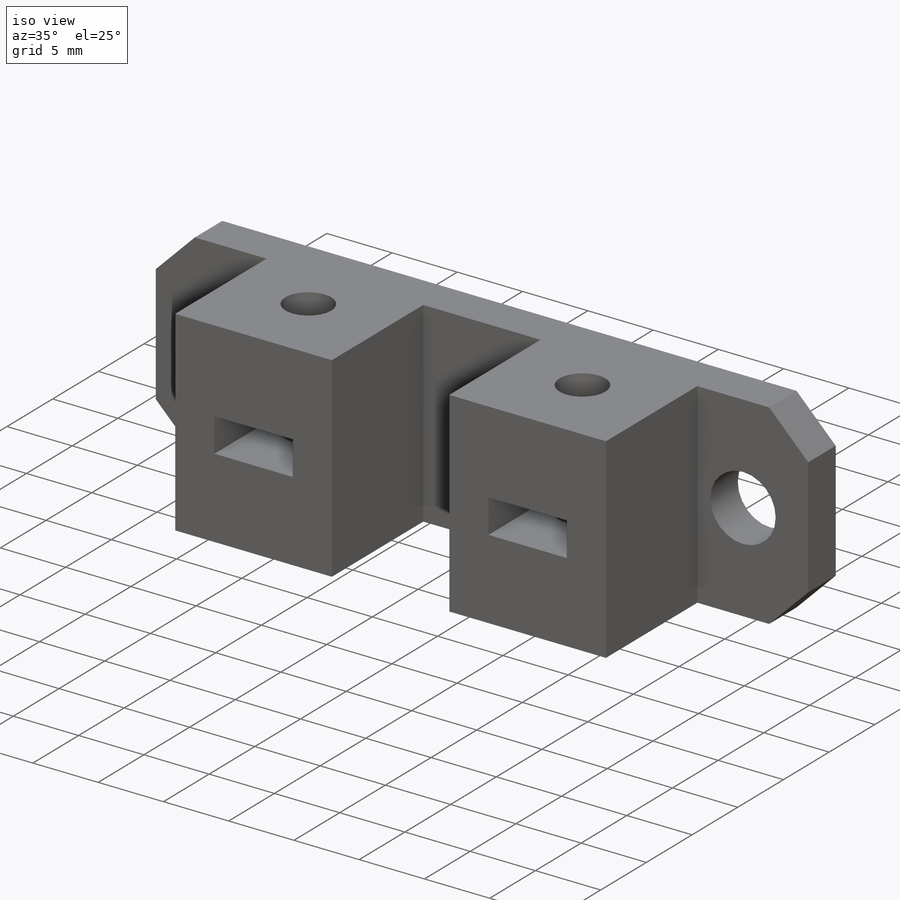
[diagram: iso view]
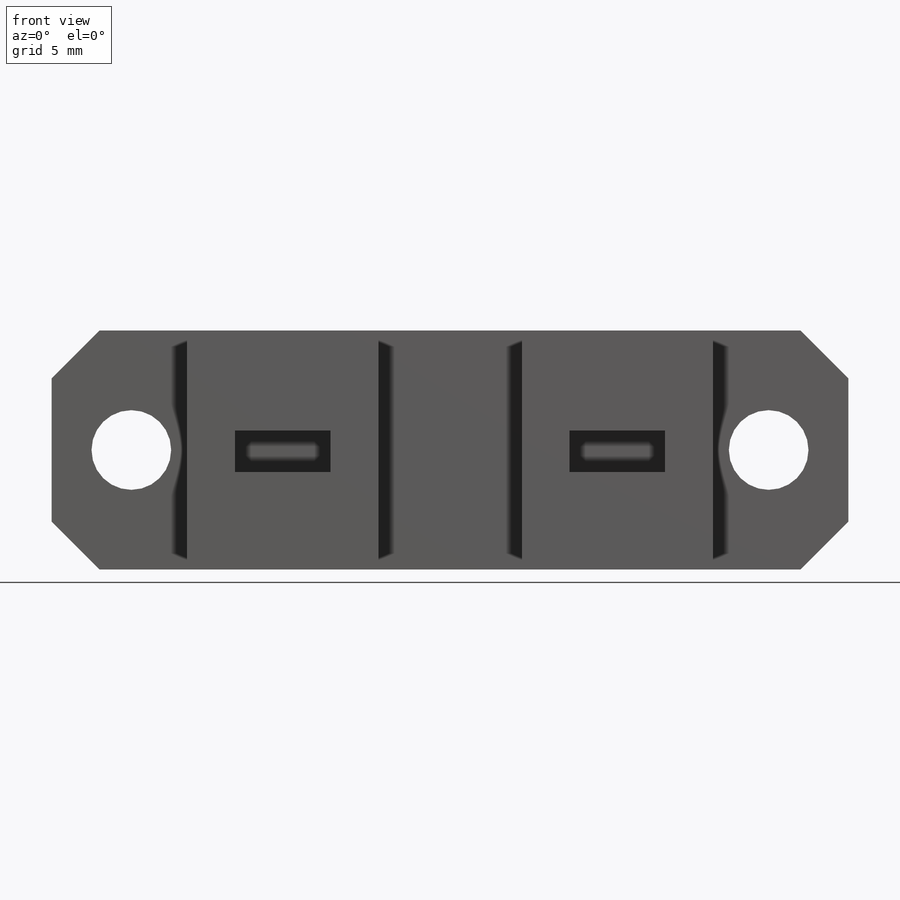
[diagram: front view]
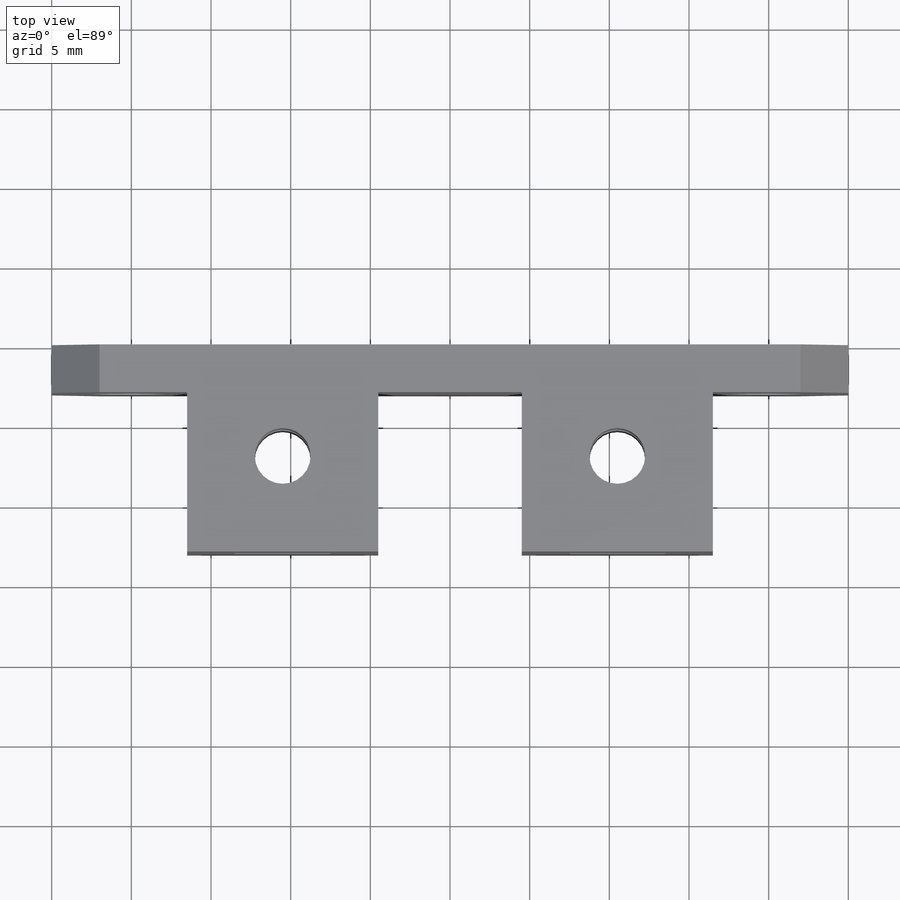
[diagram: top view]
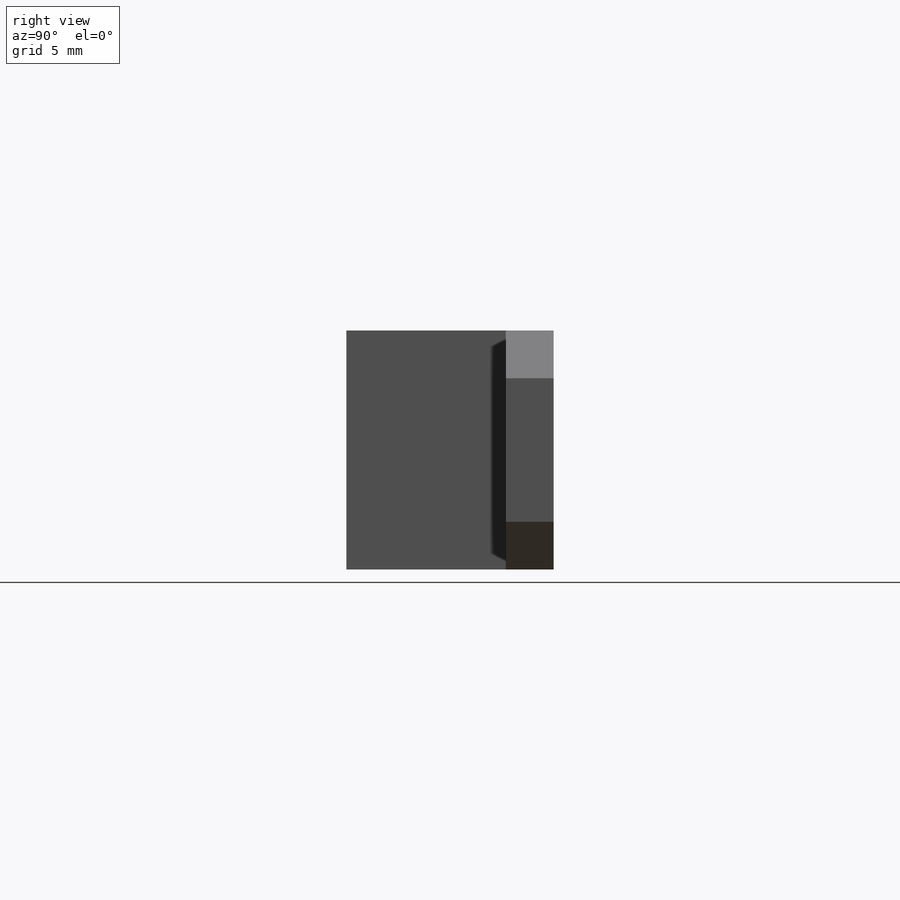
[diagram: right view]
SOLIDWORKS PART (.sldprt)
format: sldprt  version: not decoded by parser v0  size: 221,696 bytes
history: native  units: mm
features: sketch x4, extrude x2, cut_extrude x2, material x1, chamfer x1 (+11 scaffold rows collapsed)
feature tree (21):
  scaffold x11  (default folders/planes/origin — collapsed)
  material  "Material <not specified>"
  sketch  "Sketch1"  dims[D1=15.0mm D2=50.0mm]
  extrude  "Boss-Extrude1"  Depth=3mm
  sketch  "Sketch2"  dims[c1.D1=5.0mm c1.D2=5.0mm c2.D1=7.5mm c2.D2=5.0mm]
  cut_extrude  "Cut-Extrude1"  [1 undecoded]
  sketch  "Sketch3"  dims[D1=12.0mm D2=6.0mm D3=2.6mm D4=3.0mm D5=8.5mm]
  extrude  "Boss-Extrude2"  Depth=10mm
  sketch  "Sketch4"  dims[c1.D1=4.0mm c1.D2=4.0mm c1.D3=4.0mm c1.D4=3.5mm c2.D1=7.0mm c2.D2=6.0mm c2.D3=6.0mm]
  cut_extrude  "Cut-Extrude2"  [1 undecoded]
  chamfer  "Chamfer1"  Distance=3mm Angle=45deg
decode coverage: 7 of 9 modeling features carry decoded parameters
note: 2 parameter values undecoded
note: suppression state not decoded; provenance and decode notes live in map.json
